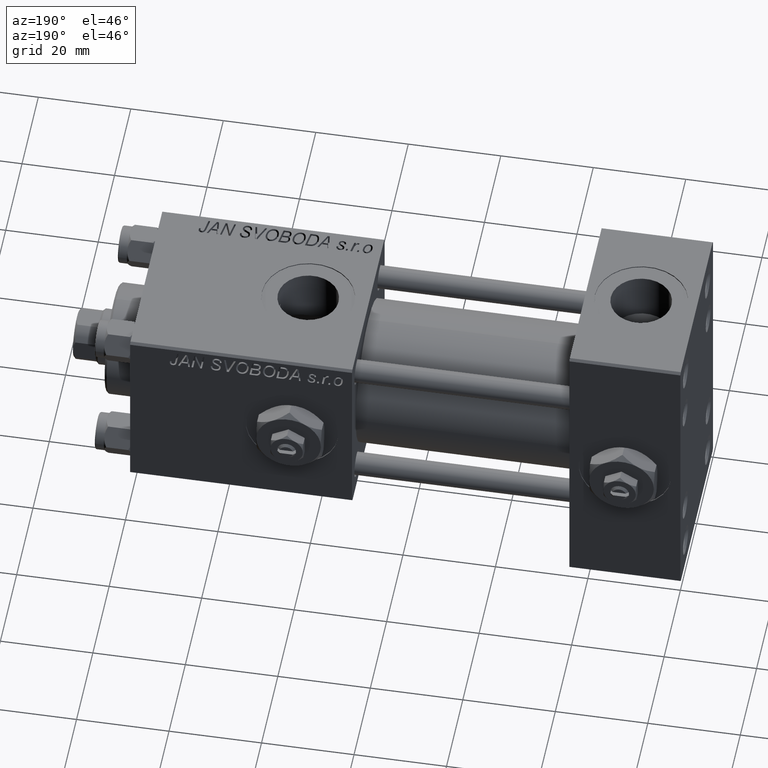
[diagram: clean part render]
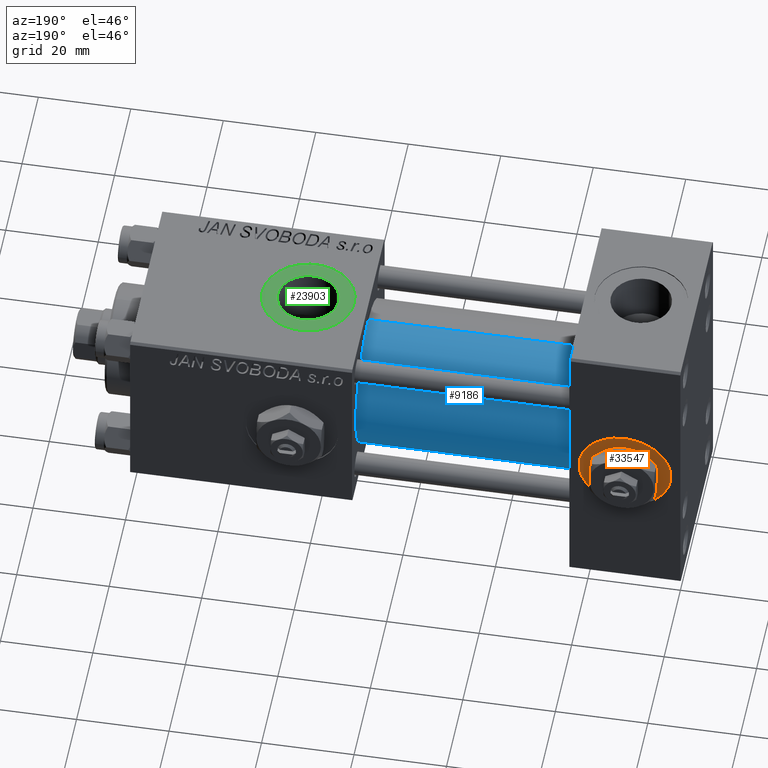
[diagram: same view with three faces highlighted in distinct colors, each labeled with its STEP entity id]
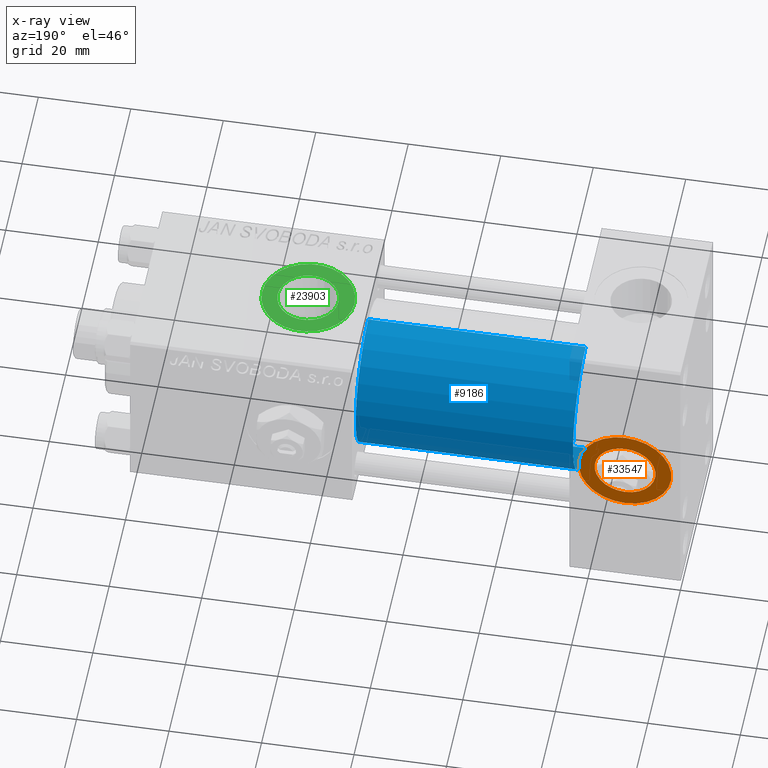
[diagram: x-ray of the same camera — body ghosted, the three highlighted faces saturated]
A machine part, auxiliary view with three faces highlighted in distinct colors.
The next image is the same camera in x-ray (body ghosted, the three faces saturated) — at least one of them is partly hidden behind the body in this view.
Their STEP definitions:

[orange] entity #33547 — the highlighted planar face has unit normal (0, 1, 0).
#837 = EDGE_LOOP ( 'NONE', ( #32959, #25190 ) ) ;
#4082 = DIRECTION ( 'NONE',  ( 0.000000000000000000, 1.000000000000000000, 0.000000000000000000 ) ) ;
#4131 = DIRECTION ( 'NONE',  ( 0.000000000000000000, 1.000000000000000000, 0.000000000000000000 ) ) ;
#5286 = FACE_BOUND ( 'NONE', #47590, .T. ) ;
#5637 = CARTESIAN_POINT ( 'NONE',  ( 12.00000000000000000, 19.79999999999999716, 10.00000000000000000 ) ) ;
#7562 = DIRECTION ( 'NONE',  ( 0.000000000000000000, 0.000000000000000000, 1.000000000000000000 ) ) ;
#7598 = AXIS2_PLACEMENT_3D ( 'NONE', #27451, #4082, #44229 ) ;
#8963 = CARTESIAN_POINT ( 'NONE',  ( 12.00000000000000178, 19.79999999999999716, -10.00000000000000000 ) ) ;
#9466 = CARTESIAN_POINT ( 'NONE',  ( 12.00000000000000000, 19.79999999999999716, 0.000000000000000000 ) ) ;
#11502 = CARTESIAN_POINT ( 'NONE',  ( 12.00000000000000000, 19.79999999999999716, 0.000000000000000000 ) ) ;
#11924 = VERTEX_POINT ( 'NONE', #22954 ) ;
#13427 = DIRECTION ( 'NONE',  ( 0.000000000000000000, -0.000000000000000000, 1.000000000000000000 ) ) ;
#13823 = CIRCLE ( 'NONE', #30601, 6.579999999999998295 ) ;
#14499 = CIRCLE ( 'NONE', #27882, 10.00000000000000000 ) ;
#16129 = VERTEX_POINT ( 'NONE', #8963 ) ;
#16809 = DIRECTION ( 'NONE',  ( 0.000000000000000000, 1.000000000000000000, 0.000000000000000000 ) ) ;
#17787 = CARTESIAN_POINT ( 'NONE',  ( 12.00000000000000000, 19.79999999999999716, -6.579999999999998295 ) ) ;
#22278 = VERTEX_POINT ( 'NONE', #5637 ) ;
#22334 = DIRECTION ( 'NONE',  ( 0.000000000000000000, 1.000000000000000000, 0.000000000000000000 ) ) ;
#22954 = CARTESIAN_POINT ( 'NONE',  ( 12.00000000000000000, 19.79999999999999716, 6.579999999999998295 ) ) ;
#22999 = EDGE_CURVE ( 'NONE', #11924, #41518, #13823, .T. ) ;
#24744 = CIRCLE ( 'NONE', #31444, 10.00000000000000000 ) ;
#25190 = ORIENTED_EDGE ( 'NONE', *, *, #39633, .T. ) ;
#27451 = CARTESIAN_POINT ( 'NONE',  ( 12.00000000000000000, 19.79999999999999716, 0.000000000000000000 ) ) ;
#27882 = AXIS2_PLACEMENT_3D ( 'NONE', #11502, #4131, #7562 ) ;
#29431 = CARTESIAN_POINT ( 'NONE',  ( 12.00000000000000000, 19.79999999999999716, 0.000000000000000000 ) ) ;
#29937 = ORIENTED_EDGE ( 'NONE', *, *, #22999, .F. ) ;
#30295 = DIRECTION ( 'NONE',  ( 0.000000000000000000, 0.000000000000000000, 1.000000000000000000 ) ) ;
#30601 = AXIS2_PLACEMENT_3D ( 'NONE', #9466, #16809, #36484 ) ;
#31444 = AXIS2_PLACEMENT_3D ( 'NONE', #46595, #50261, #30295 ) ;
#32959 = ORIENTED_EDGE ( 'NONE', *, *, #49063, .T. ) ;
#33547 = ADVANCED_FACE ( 'NONE', ( #5286, #49391 ), #49140, .T. ) ;
#35128 = EDGE_CURVE ( 'NONE', #41518, #11924, #40287, .T. ) ;
#36484 = DIRECTION ( 'NONE',  ( 0.000000000000000000, 0.000000000000000000, 1.000000000000000000 ) ) ;
#39633 = EDGE_CURVE ( 'NONE', #16129, #22278, #14499, .T. ) ;
#40287 = CIRCLE ( 'NONE', #7598, 6.579999999999998295 ) ;
#41518 = VERTEX_POINT ( 'NONE', #17787 ) ;
#44229 = DIRECTION ( 'NONE',  ( 0.000000000000000000, 0.000000000000000000, 1.000000000000000000 ) ) ;
#44742 = ORIENTED_EDGE ( 'NONE', *, *, #35128, .F. ) ;
#46595 = CARTESIAN_POINT ( 'NONE',  ( 12.00000000000000000, 19.79999999999999716, 0.000000000000000000 ) ) ;
#47590 = EDGE_LOOP ( 'NONE', ( #29937, #44742 ) ) ;
#47771 = AXIS2_PLACEMENT_3D ( 'NONE', #29431, #22334, #13427 ) ;
#49063 = EDGE_CURVE ( 'NONE', #22278, #16129, #24744, .T. ) ;
#49140 = PLANE ( 'NONE',  #47771 ) ;
#49391 = FACE_OUTER_BOUND ( 'NONE', #837, .T. ) ;
#50261 = DIRECTION ( 'NONE',  ( 0.000000000000000000, 1.000000000000000000, 0.000000000000000000 ) ) ;

[blue] entity #9186 — the highlighted cylindrical surface (partial cylindrical patch) has radius 15.5 mm, axis along (-1, -0, -0).
#936 = EDGE_CURVE ( 'NONE', #17746, #19237, #33405, .T. ) ;
#1300 = ORIENTED_EDGE ( 'NONE', *, *, #7886, .T. ) ;
#2222 = CARTESIAN_POINT ( 'NONE',  ( 71.00000000000001421, -2.602085213965210642E-15, 0.000000000000000000 ) ) ;
#3002 = DIRECTION ( 'NONE',  ( 0.000000000000000000, 0.000000000000000000, -1.000000000000000000 ) ) ;
#5248 = CARTESIAN_POINT ( 'NONE',  ( 24.00000000000000000, -7.038826752868131828E-16, -15.50000000000000000 ) ) ;
#5689 = CARTESIAN_POINT ( 'NONE',  ( 71.00000000000001421, -7.038826752868131828E-16, -15.50000000000000000 ) ) ;
#7886 = EDGE_CURVE ( 'NONE', #46246, #22598, #8500, .T. ) ;
#7915 = CARTESIAN_POINT ( 'NONE',  ( 71.00000000000001421, -2.602085213965210642E-15, 15.50000000000000000 ) ) ;
#8476 = CARTESIAN_POINT ( 'NONE',  ( 24.00000000000000000, -2.602085213965210642E-15, 0.000000000000000000 ) ) ;
#8500 = CIRCLE ( 'NONE', #35198, 15.50000000000000000 ) ;
#9186 = ADVANCED_FACE ( 'NONE', ( #30793 ), #50765, .T. ) ;
#14539 = CARTESIAN_POINT ( 'NONE',  ( 71.00000000000001421, -2.602085213965210642E-15, 0.000000000000000000 ) ) ;
#16826 = DIRECTION ( 'NONE',  ( -1.000000000000000000, -0.000000000000000000, -0.000000000000000000 ) ) ;
#17746 = VERTEX_POINT ( 'NONE', #31702 ) ;
#17893 = ORIENTED_EDGE ( 'NONE', *, *, #43338, .F. ) ;
#18320 = AXIS2_PLACEMENT_3D ( 'NONE', #2222, #34993, #3002 ) ;
#19237 = VERTEX_POINT ( 'NONE', #34242 ) ;
#22598 = VERTEX_POINT ( 'NONE', #29726 ) ;
#23493 = EDGE_LOOP ( 'NONE', ( #50697, #26293, #1300, #17893 ) ) ;
#26293 = ORIENTED_EDGE ( 'NONE', *, *, #30179, .T. ) ;
#28368 = LINE ( 'NONE', #7915, #40583 ) ;
#29726 = CARTESIAN_POINT ( 'NONE',  ( 24.00000000000000000, -2.602085213965210642E-15, 15.50000000000000000 ) ) ;
#30179 = EDGE_CURVE ( 'NONE', #17746, #46246, #42170, .T. ) ;
#30793 = FACE_OUTER_BOUND ( 'NONE', #23493, .T. ) ;
#31702 = CARTESIAN_POINT ( 'NONE',  ( 71.00000000000001421, -7.038826752868131828E-16, -15.50000000000000000 ) ) ;
#32550 = VECTOR ( 'NONE', #49809, 1000.000000000000000 ) ;
#33405 = CIRCLE ( 'NONE', #18320, 15.50000000000000000 ) ;
#34195 = DIRECTION ( 'NONE',  ( 0.000000000000000000, 0.000000000000000000, 1.000000000000000000 ) ) ;
#34242 = CARTESIAN_POINT ( 'NONE',  ( 71.00000000000001421, -2.602085213965210642E-15, 15.50000000000000000 ) ) ;
#34993 = DIRECTION ( 'NONE',  ( 1.000000000000000000, 0.000000000000000000, 0.000000000000000000 ) ) ;
#35198 = AXIS2_PLACEMENT_3D ( 'NONE', #8476, #40480, #37572 ) ;
#35233 = AXIS2_PLACEMENT_3D ( 'NONE', #14539, #42614, #34195 ) ;
#37572 = DIRECTION ( 'NONE',  ( 0.000000000000000000, 0.000000000000000000, 1.000000000000000000 ) ) ;
#40480 = DIRECTION ( 'NONE',  ( 1.000000000000000000, 0.000000000000000000, 0.000000000000000000 ) ) ;
#40583 = VECTOR ( 'NONE', #16826, 1000.000000000000000 ) ;
#42170 = LINE ( 'NONE', #5689, #32550 ) ;
#42614 = DIRECTION ( 'NONE',  ( -1.000000000000000000, -0.000000000000000000, -0.000000000000000000 ) ) ;
#43338 = EDGE_CURVE ( 'NONE', #19237, #22598, #28368, .T. ) ;
#46246 = VERTEX_POINT ( 'NONE', #5248 ) ;
#49809 = DIRECTION ( 'NONE',  ( -1.000000000000000000, -0.000000000000000000, -0.000000000000000000 ) ) ;
#50697 = ORIENTED_EDGE ( 'NONE', *, *, #936, .F. ) ;
#50765 = CYLINDRICAL_SURFACE ( 'NONE', #35233, 15.50000000000000000 ) ;

[green] entity #23903 — the highlighted planar face has unit normal (0, 0, 1).
#1012 = FACE_BOUND ( 'NONE', #16720, .T. ) ;
#5098 = ORIENTED_EDGE ( 'NONE', *, *, #20000, .T. ) ;
#5279 = VERTEX_POINT ( 'NONE', #47965 ) ;
#6716 = AXIS2_PLACEMENT_3D ( 'NONE', #10033, #50725, #49949 ) ;
#7910 = EDGE_CURVE ( 'NONE', #41810, #8507, #29448, .T. ) ;
#8507 = VERTEX_POINT ( 'NONE', #19596 ) ;
#8906 = FACE_OUTER_BOUND ( 'NONE', #47411, .T. ) ;
#9887 = DIRECTION ( 'NONE',  ( 0.000000000000000000, 0.000000000000000000, 1.000000000000000000 ) ) ;
#10033 = CARTESIAN_POINT ( 'NONE',  ( 84.00000000000162004, -1.734723475976807094E-15, 19.80000000000000071 ) ) ;
#11313 = CIRCLE ( 'NONE', #19701, 10.00000000000000888 ) ;
#11378 = VERTEX_POINT ( 'NONE', #17063 ) ;
#16681 = CARTESIAN_POINT ( 'NONE',  ( 90.58000000000161833, -1.734723475976807094E-15, 19.80000000000000071 ) ) ;
#16720 = EDGE_LOOP ( 'NONE', ( #43623, #34788 ) ) ;
#17063 = CARTESIAN_POINT ( 'NONE',  ( 74.00000000000160583, -5.100766768294525560E-16, 19.80000000000000071 ) ) ;
#18853 = AXIS2_PLACEMENT_3D ( 'NONE', #31153, #35330, #19859 ) ;
#19017 = EDGE_CURVE ( 'NONE', #8507, #41810, #38911, .T. ) ;
#19596 = CARTESIAN_POINT ( 'NONE',  ( 77.42000000000160753, -9.289058821378484469E-16, 19.80000000000000071 ) ) ;
#19701 = AXIS2_PLACEMENT_3D ( 'NONE', #45849, #9887, #43892 ) ;
#19859 = DIRECTION ( 'NONE',  ( 1.000000000000000000, 0.000000000000000000, 0.000000000000000000 ) ) ;
#20000 = EDGE_CURVE ( 'NONE', #11378, #5279, #11313, .T. ) ;
#20414 = ORIENTED_EDGE ( 'NONE', *, *, #37575, .T. ) ;
#20967 = CARTESIAN_POINT ( 'NONE',  ( 84.00000000000162004, -1.734723475976806897E-15, 19.80000000000000071 ) ) ;
#23903 = ADVANCED_FACE ( 'NONE', ( #1012, #8906 ), #40898, .T. ) ;
#25160 = DIRECTION ( 'NONE',  ( 1.000000000000000000, 0.000000000000000000, -0.000000000000000000 ) ) ;
#29448 = CIRCLE ( 'NONE', #6716, 6.580000000000002736 ) ;
#31153 = CARTESIAN_POINT ( 'NONE',  ( 84.00000000000162004, -1.734723475976807094E-15, 19.80000000000000071 ) ) ;
#33920 = DIRECTION ( 'NONE',  ( 0.000000000000000000, 0.000000000000000000, 1.000000000000000000 ) ) ;
#34526 = CIRCLE ( 'NONE', #40397, 10.00000000000000888 ) ;
#34788 = ORIENTED_EDGE ( 'NONE', *, *, #19017, .F. ) ;
#35330 = DIRECTION ( 'NONE',  ( 0.000000000000000000, 0.000000000000000000, 1.000000000000000000 ) ) ;
#35634 = AXIS2_PLACEMENT_3D ( 'NONE', #20967, #36955, #25160 ) ;
#36955 = DIRECTION ( 'NONE',  ( 0.000000000000000000, 0.000000000000000000, 1.000000000000000000 ) ) ;
#37575 = EDGE_CURVE ( 'NONE', #5279, #11378, #34526, .T. ) ;
#38117 = CARTESIAN_POINT ( 'NONE',  ( 84.00000000000162004, -1.734723475976806897E-15, 19.80000000000000071 ) ) ;
#38640 = DIRECTION ( 'NONE',  ( 1.000000000000000000, 0.000000000000000000, 0.000000000000000000 ) ) ;
#38911 = CIRCLE ( 'NONE', #18853, 6.580000000000002736 ) ;
#40397 = AXIS2_PLACEMENT_3D ( 'NONE', #38117, #33920, #38640 ) ;
#40898 = PLANE ( 'NONE',  #35634 ) ;
#41810 = VERTEX_POINT ( 'NONE', #16681 ) ;
#43623 = ORIENTED_EDGE ( 'NONE', *, *, #7910, .F. ) ;
#43892 = DIRECTION ( 'NONE',  ( 1.000000000000000000, 0.000000000000000000, 0.000000000000000000 ) ) ;
#45849 = CARTESIAN_POINT ( 'NONE',  ( 84.00000000000162004, -1.734723475976806897E-15, 19.80000000000000071 ) ) ;
#47411 = EDGE_LOOP ( 'NONE', ( #20414, #5098 ) ) ;
#47965 = CARTESIAN_POINT ( 'NONE',  ( 94.00000000000162004, -1.734723475976806897E-15, 19.80000000000000071 ) ) ;
#49949 = DIRECTION ( 'NONE',  ( 1.000000000000000000, 0.000000000000000000, 0.000000000000000000 ) ) ;
#50725 = DIRECTION ( 'NONE',  ( 0.000000000000000000, 0.000000000000000000, 1.000000000000000000 ) ) ;